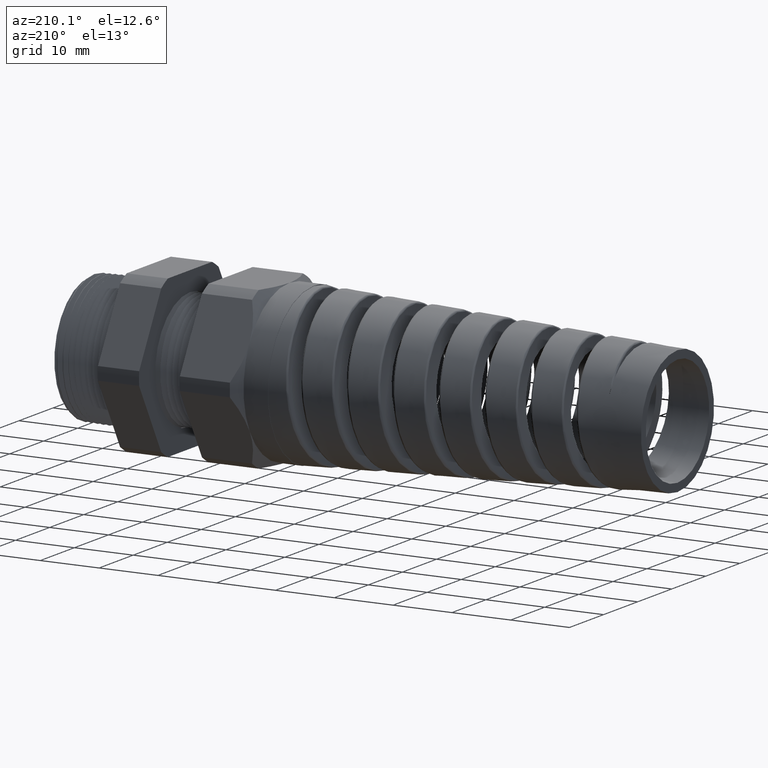
[diagram: clean part render]
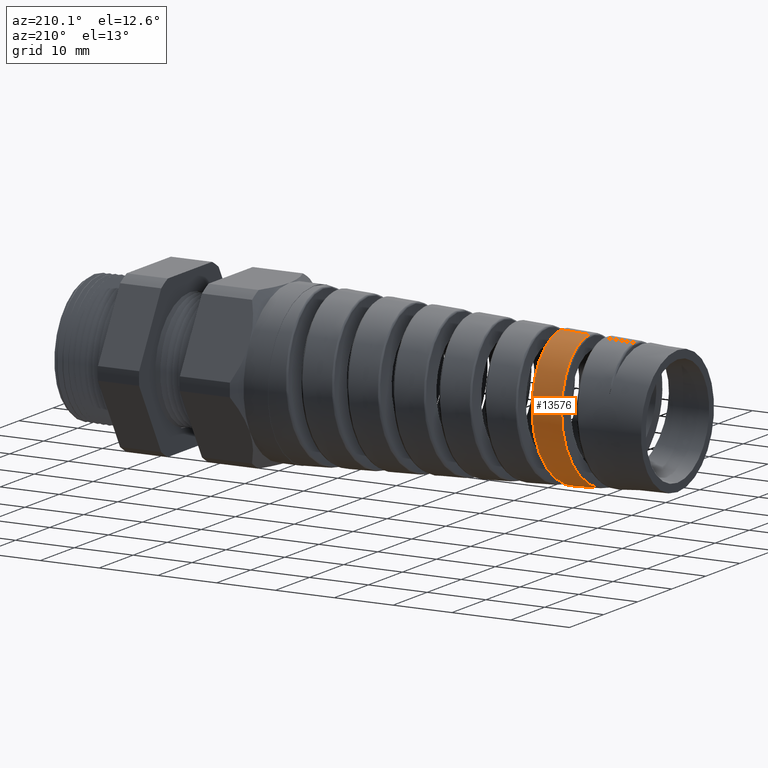
[diagram: same view with one face highlighted and labeled with its STEP entity id]
A machine part, auxiliary view. The second image highlights one B-rep face of the part: STEP entity #13576.
In plain terms, the highlighted conical surface has half-angle 2.5 deg.
Its self-contained STEP definition (entity closure, byte-faithful):
#1349 = VERTEX_POINT ( 'NONE', #6402 ) ;
#2171 = DIRECTION ( 'NONE',  ( 0.9990482215818576900, 5.341834311772761800E-018, 0.04361938736533631200 ) ) ;
#2172 = VECTOR ( 'NONE', #2171, 39.37007874015748100 ) ;
#2173 = CARTESIAN_POINT ( 'NONE',  ( -1.369999999999999900, 6.490628035480970000E-017, 0.5299999999999999200 ) ) ;
#2174 = LINE ( 'NONE', #2173, #2172 ) ;
#3533 = EDGE_CURVE ( 'NONE', #3606, #4310, #6508, .T. ) ;
#3606 = VERTEX_POINT ( 'NONE', #6507 ) ;
#3684 = VERTEX_POINT ( 'NONE', #6532 ) ;
#3785 = ORIENTED_EDGE ( 'NONE', *, *, #3818, .T. ) ;
#3818 = EDGE_CURVE ( 'NONE', #1349, #3684, #6530, .T. ) ;
#4294 = EDGE_CURVE ( 'NONE', #3606, #3684, #6642, .T. ) ;
#4310 = VERTEX_POINT ( 'NONE', #6638 ) ;
#6402 = CARTESIAN_POINT ( 'NONE',  ( -3.067532676807746200, 4.560865582413023300E-015, 0.4558841227125626200 ) ) ;
#6491 = CARTESIAN_POINT ( 'NONE',  ( -3.357566093671179100, 0.3993772627108215200, -0.1943739332452036100 ) ) ;
#6492 = CARTESIAN_POINT ( 'NONE',  ( -3.360673770736163100, 0.3857512358920430800, -0.2199495894635312700 ) ) ;
#6493 = CARTESIAN_POINT ( 'NONE',  ( -3.365409521675556600, 0.3613567431142453200, -0.2564703036897577600 ) ) ;
#6494 = CARTESIAN_POINT ( 'NONE',  ( -3.366988527278604400, 0.3526183664196015900, -0.2682376931387198100 ) ) ;
#6495 = CARTESIAN_POINT ( 'NONE',  ( -3.370121214970320400, 0.3341822537654281500, -0.2906755593345325400 ) ) ;
#6496 = CARTESIAN_POINT ( 'NONE',  ( -3.373241411329460000, 0.3147223894321931600, -0.3121143783896470600 ) ) ;
#6497 = CARTESIAN_POINT ( 'NONE',  ( -3.376366450640192300, 0.2932383972041345300, -0.3315734345683653600 ) ) ;
#6498 = CARTESIAN_POINT ( 'NONE',  ( -3.379509229768377800, 0.2707249602837076800, -0.3500232927063636200 ) ) ;
#6499 = CARTESIAN_POINT ( 'NONE',  ( -3.381098126126260300, 0.2588848629467775400, -0.3587849316024950800 ) ) ;
#6500 = CARTESIAN_POINT ( 'NONE',  ( -3.385826614746244400, 0.2224509035330605200, -0.3830399738092388800 ) ) ;
#6501 = CARTESIAN_POINT ( 'NONE',  ( -3.388939955851066900, 0.1968855632277454500, -0.3966223424872163900 ) ) ;
#6502 = CARTESIAN_POINT ( 'NONE',  ( -3.395209889495009100, 0.1432598365775594200, -0.4186979664837127100 ) ) ;
#6503 = CARTESIAN_POINT ( 'NONE',  ( -3.398395632392450200, 0.1149181669733751200, -0.4272042876221297500 ) ) ;
#6504 = CARTESIAN_POINT ( 'NONE',  ( -3.404676532087281200, 0.05795799126588668100, -0.4383018636081877900 ) ) ;
#6505 = CARTESIAN_POINT ( 'NONE',  ( -3.407794646049892700, 0.02914467440305522300, -0.4410279642995983400 ) ) ;
#6506 = CARTESIAN_POINT ( 'NONE',  ( -3.410951644221473800, -8.311070975852356500E-013, -0.4408901267826116400 ) ) ;
#6507 = CARTESIAN_POINT ( 'NONE',  ( -3.410951644221473800, -8.311070975852356500E-013, -0.4408901267826116400 ) ) ;
#6508 = B_SPLINE_CURVE_WITH_KNOTS ( 'NONE', 3,
 ( #6506, #6505, #6504, #6503, #6502, #6501, #6500, #6499, #6498, #6497, #6496, #6495, #6494, #6493, #6492, #6491, #6564, #6563, #6562, #6561, #6560, #6559, #6558, #6557, #6556, #6555, #6554, #6553, #6552, #6551, #6550, #6549, #6548, #6547, #6546, #6545, #6544, #6543, #6542, #6541, #6540, #6539, #6538, #6537, #6536, #6535, #6534, #6533 ),
 .UNSPECIFIED., .F., .F.,
 ( 4, 2, 2, 2, 2, 1, 2, 2, 2, 2, 2, 2, 2, 2, 2, 2, 1, 2, 2, 2, 2, 2, 2, 2, 4 ),
 ( 0.04772691341789807300, 0.04997315946578263100, 0.05221940551366719600, 0.05446565156155175300, 0.05558877458549402900, 0.05671189760943630400, 0.05783502063337858700, 0.05895814365732086200, 0.06120438970520541300, 0.06232751272914768800, 0.06345063575308995700, 0.06569688180097452100, 0.06682000482491679000, 0.06794312784885905800, 0.07018937389674362300, 0.07131249692068589200, 0.07243561994462816000, 0.07355874296857042900, 0.07468186599251269700, 0.07692811204039726200, 0.07805123506433953000, 0.07917435808828181300, 0.08142060413616636300, 0.08254372716010863200, 0.08366685018405091400 ),
 .UNSPECIFIED. ) ;
#6525 = CARTESIAN_POINT ( 'NONE',  ( -3.079968950017749400, 0.1175132309243165600, 0.4409308778012224200 ) ) ;
#6526 = CARTESIAN_POINT ( 'NONE',  ( -3.073702401714430500, 0.05890385020719510200, 0.4527791685881433800 ) ) ;
#6527 = CARTESIAN_POINT ( 'NONE',  ( -3.070621002902614200, 0.02949765279870105900, 0.4557492834832513900 ) ) ;
#6528 = CARTESIAN_POINT ( 'NONE',  ( -3.067532676807746200, 4.560865582413023300E-015, 0.4558841227125626200 ) ) ;
#6530 = B_SPLINE_CURVE_WITH_KNOTS ( 'NONE', 3,
 ( #6528, #6527, #6526, #6525, #6610, #6609, #6608, #6607, #6606, #6605, #6604, #6603, #6602, #6601, #6600, #6599, #6598, #6597, #6596, #6595, #6594, #6593, #6592, #6591, #6590, #6589, #6588, #6587, #6586, #6585, #6584, #6583, #6582, #6581, #6580, #6579, #6578, #6577, #6576, #6575, #6574, #6573, #6572, #6571, #6570, #6569 ),
 .UNSPECIFIED., .F., .F.,
 ( 4, 2, 2, 2, 2, 2, 2, 2, 2, 2, 2, 2, 2, 2, 2, 2, 2, 2, 2, 2, 2, 2, 4 ),
 ( 0.4325509372496640900, 0.4348220332103909800, 0.4370931291711178700, 0.4382286771514813400, 0.4393642251318447500, 0.4416353210925717000, 0.4439064170532985900, 0.4461775130140254700, 0.4473130609943889400, 0.4484486089747523600, 0.4507197049354793000, 0.4529908008962061900, 0.4541263488765696100, 0.4552618968569330800, 0.4575329928176599700, 0.4586685407980234400, 0.4598040887783868500, 0.4620751847391138000, 0.4632107327194772100, 0.4643462806998406900, 0.4654818286802041000, 0.4666173766605675700, 0.4688884726212944600 ),
 .UNSPECIFIED. ) ;
#6532 = CARTESIAN_POINT ( 'NONE',  ( -3.217488963632075800, 7.240726207733943600E-014, -0.4493368898347531200 ) ) ;
#6533 = CARTESIAN_POINT ( 'NONE',  ( -3.260907839818875800, 1.011839699209273400E-012, 0.4474411807604094500 ) ) ;
#6534 = CARTESIAN_POINT ( 'NONE',  ( -3.262453365767665300, 0.01447801605065983400, 0.4473737016401629900 ) ) ;
#6535 = CARTESIAN_POINT ( 'NONE',  ( -3.264002003115718900, 0.02898014949747086700, 0.4466050865433570700 ) ) ;
#6536 = CARTESIAN_POINT ( 'NONE',  ( -3.267120608001209600, 0.05803231697633271700, 0.4436286844014529800 ) ) ;
#6537 = CARTESIAN_POINT ( 'NONE',  ( -3.268690792910643700, 0.07258291865864412200, 0.4414101734979850000 ) ) ;
#6538 = CARTESIAN_POINT ( 'NONE',  ( -3.273352759831671000, 0.1153501640519790000, 0.4327335795460622300 ) ) ;
#6539 = CARTESIAN_POINT ( 'NONE',  ( -3.276431159845525800, 0.1430149807874275000, 0.4242500468520057900 ) ) ;
#6540 = CARTESIAN_POINT ( 'NONE',  ( -3.281090950111293900, 0.1832378243595823600, 0.4074931444914027800 ) ) ;
#6541 = CARTESIAN_POINT ( 'NONE',  ( -3.282658003288313700, 0.1964881735009068300, 0.4011997736496292200 ) ) ;
#6542 = CARTESIAN_POINT ( 'NONE',  ( -3.285789135545138500, 0.2222734623345861100, 0.3873516609404389900 ) ) ;
#6543 = CARTESIAN_POINT ( 'NONE',  ( -3.287343389728596900, 0.2347305670561012400, 0.3798467217236512500 ) ) ;
#6544 = CARTESIAN_POINT ( 'NONE',  ( -3.291995300696520100, 0.2708313794969625700, 0.3556413880818490900 ) ) ;
#6545 = CARTESIAN_POINT ( 'NONE',  ( -3.295082064526766400, 0.2932164092554547800, 0.3372661847653422600 ) ) ;
#6546 = CARTESIAN_POINT ( 'NONE',  ( -3.299777444720037900, 0.3241971254329317800, 0.3062637085198347500 ) ) ;
#6547 = CARTESIAN_POINT ( 'NONE',  ( -3.301351709071673700, 0.3340680523602086400, 0.2953582151244671400 ) ) ;
#6548 = CARTESIAN_POINT ( 'NONE',  ( -3.304468337431298000, 0.3525041671316791500, 0.2728689777716635200 ) ) ;
#6549 = CARTESIAN_POINT ( 'NONE',  ( -3.307570402480658300, 0.3697520198798326400, 0.2495894714864067800 ) ) ;
#6550 = CARTESIAN_POINT ( 'NONE',  ( -3.310673254763081700, 0.3846560294428794700, 0.2247549784443887100 ) ) ;
#6551 = CARTESIAN_POINT ( 'NONE',  ( -3.313791120770412900, 0.3983712237471512300, 0.1991336739305391300 ) ) ;
#6552 = CARTESIAN_POINT ( 'NONE',  ( -3.315365414752677900, 0.4046618572710131700, 0.1858605589649403900 ) ) ;
#6553 = CARTESIAN_POINT ( 'NONE',  ( -3.320073804740470100, 0.4214635324617431200, 0.1453355542494953500 ) ) ;
#6554 = CARTESIAN_POINT ( 'NONE',  ( -3.323169059545372200, 0.4298661366710492300, 0.1176118886332553600 ) ) ;
#6555 = CARTESIAN_POINT ( 'NONE',  ( -3.327836812933715000, 0.4383848557126056000, 0.07500419880616479600 ) ) ;
#6556 = CARTESIAN_POINT ( 'NONE',  ( -3.329396799306510300, 0.4405387410883915300, 0.06063005167508309100 ) ) ;
#6557 = CARTESIAN_POINT ( 'NONE',  ( -3.332540012452450000, 0.4434346262808191400, 0.03153010627738183500 ) ) ;
#6558 = CARTESIAN_POINT ( 'NONE',  ( -3.334117350797715300, 0.4441625870291199300, 0.01685755765400712800 ) ) ;
#6559 = CARTESIAN_POINT ( 'NONE',  ( -3.338804640515949700, 0.4441862521318450900, -0.02673617092676361400 ) ) ;
#6560 = CARTESIAN_POINT ( 'NONE',  ( -3.341901964249711200, 0.4413763604114292500, -0.05553480623824288300 ) ) ;
#6561 = CARTESIAN_POINT ( 'NONE',  ( -3.346596718267897100, 0.4329122253099353400, -0.09832618477301440000 ) ) ;
#6562 = CARTESIAN_POINT ( 'NONE',  ( -3.348178561471867100, 0.4293519635484766600, -0.1125994045492525300 ) ) ;
#6563 = CARTESIAN_POINT ( 'NONE',  ( -3.351324562399918600, 0.4208828377307353200, -0.1405614397524046500 ) ) ;
#6564 = CARTESIAN_POINT ( 'NONE',  ( -3.352887022782134400, 0.4159883870108767600, -0.1542377639022205500 ) ) ;
#6569 = CARTESIAN_POINT ( 'NONE',  ( -3.217488963632075800, 7.240726207733943600E-014, -0.4493368898347531200 ) ) ;
#6570 = CARTESIAN_POINT ( 'NONE',  ( -3.214352004735597100, 0.02952915062313365600, -0.4494738524180338400 ) ) ;
#6571 = CARTESIAN_POINT ( 'NONE',  ( -3.211233159174713000, 0.05891567386074780800, -0.4467272464958085800 ) ) ;
#6572 = CARTESIAN_POINT ( 'NONE',  ( -3.206491778514240400, 0.1027664431826475500, -0.4381737145223275600 ) ) ;
#6573 = CARTESIAN_POINT ( 'NONE',  ( -3.204903982724939000, 0.1173115928780318900, -0.4345746854346387300 ) ) ;
#6574 = CARTESIAN_POINT ( 'NONE',  ( -3.201761296768864500, 0.1456845243574405900, -0.4260477266903308100 ) ) ;
#6575 = CARTESIAN_POINT ( 'NONE',  ( -3.200197741923271400, 0.1595929988774683100, -0.4211057943269370700 ) ) ;
#6576 = CARTESIAN_POINT ( 'NONE',  ( -3.197071033641258400, 0.1868605934233847900, -0.4098854000475902200 ) ) ;
#6577 = CARTESIAN_POINT ( 'NONE',  ( -3.195507919279370900, 0.2002197166216435900, -0.4036069348988354800 ) ) ;
#6578 = CARTESIAN_POINT ( 'NONE',  ( -3.192367709295332200, 0.2263794341362584700, -0.3896951870724747500 ) ) ;
#6579 = CARTESIAN_POINT ( 'NONE',  ( -3.190781774743062900, 0.2392475250872788400, -0.3820147513104109000 ) ) ;
#6580 = CARTESIAN_POINT ( 'NONE',  ( -3.186049550928843100, 0.2764196012708413600, -0.3572370000773457700 ) ) ;
#6581 = CARTESIAN_POINT ( 'NONE',  ( -3.182939721915199800, 0.2992350834743966500, -0.3385142232785450800 ) ) ;
#6582 = CARTESIAN_POINT ( 'NONE',  ( -3.178251141466536200, 0.3305790284535852200, -0.3072159690703036300 ) ) ;
#6583 = CARTESIAN_POINT ( 'NONE',  ( -3.176684570090773100, 0.3405437196582910600, -0.2962436825840330000 ) ) ;
#6584 = CARTESIAN_POINT ( 'NONE',  ( -3.173528581424177400, 0.3594758458731314700, -0.2731882172001736700 ) ) ;
#6585 = CARTESIAN_POINT ( 'NONE',  ( -3.171950133426214800, 0.3683714567338839400, -0.2611816949289128000 ) ) ;
#6586 = CARTESIAN_POINT ( 'NONE',  ( -3.167255710658075400, 0.3930204077754027000, -0.2242553177426783700 ) ) ;
#6587 = CARTESIAN_POINT ( 'NONE',  ( -3.164153838507612000, 0.4069156391926667100, -0.1982449725559954100 ) ) ;
#6588 = CARTESIAN_POINT ( 'NONE',  ( -3.159453326310834000, 0.4239278828422929900, -0.1571377147541867200 ) ) ;
#6589 = CARTESIAN_POINT ( 'NONE',  ( -3.157870031213200000, 0.4289763059932620300, -0.1430041040931829800 ) ) ;
#6590 = CARTESIAN_POINT ( 'NONE',  ( -3.154729245335346800, 0.4375809920560109800, -0.1145324750043766500 ) ) ;
#6591 = CARTESIAN_POINT ( 'NONE',  ( -3.153169429080755500, 0.4411545985272788400, -0.1001771147102086500 ) ) ;
#6592 = CARTESIAN_POINT ( 'NONE',  ( -3.148498524212525900, 0.4497421648678179300, -0.05676349230506420200 ) ) ;
#6593 = CARTESIAN_POINT ( 'NONE',  ( -3.145396119728105100, 0.4526433736032899300, -0.02736100488197026900 ) ) ;
#6594 = CARTESIAN_POINT ( 'NONE',  ( -3.139095155993695500, 0.4525868502551351800, 0.03238563492864426900 ) ) ;
#6595 = CARTESIAN_POINT ( 'NONE',  ( -3.135985065034018400, 0.4496151968873995400, 0.06188825831299311900 ) ) ;
#6596 = CARTESIAN_POINT ( 'NONE',  ( -3.131324399594174900, 0.4409475934206085700, 0.1052676398942483800 ) ) ;
#6597 = CARTESIAN_POINT ( 'NONE',  ( -3.129769748660220500, 0.4373515487410578600, 0.1195995601244720000 ) ) ;
#6598 = CARTESIAN_POINT ( 'NONE',  ( -3.126643305078324000, 0.4287188137881096100, 0.1480011722567481900 ) ) ;
#6599 = CARTESIAN_POINT ( 'NONE',  ( -3.125063923642630700, 0.4236496205629588500, 0.1621362010999689600 ) ) ;
#6600 = CARTESIAN_POINT ( 'NONE',  ( -3.120371887994703600, 0.4065518398641899100, 0.2032997543007545900 ) ) ;
#6601 = CARTESIAN_POINT ( 'NONE',  ( -3.117283387261012200, 0.3926189512618187800, 0.2293002484133863100 ) ) ;
#6602 = CARTESIAN_POINT ( 'NONE',  ( -3.111065973872628300, 0.3597746221169508300, 0.2784544260443950800 ) ) ;
#6603 = CARTESIAN_POINT ( 'NONE',  ( -3.107910284093979800, 0.3406439184364076200, 0.3017645262430220800 ) ) ;
#6604 = CARTESIAN_POINT ( 'NONE',  ( -3.101697291077390800, 0.2988343340812226700, 0.3435761885233839000 ) ) ;
#6605 = CARTESIAN_POINT ( 'NONE',  ( -3.098614506235686700, 0.2760541539397912100, 0.3623137846823281700 ) ) ;
#6606 = CARTESIAN_POINT ( 'NONE',  ( -3.093936749441118700, 0.2390406224783948600, 0.3871184750904603800 ) ) ;
#6607 = CARTESIAN_POINT ( 'NONE',  ( -3.092362219847138300, 0.2261694779419866100, 0.3948555591505061900 ) ) ;
#6608 = CARTESIAN_POINT ( 'NONE',  ( -3.089245720587803200, 0.1999968375954149500, 0.4088870228491402500 ) ) ;
#6609 = CARTESIAN_POINT ( 'NONE',  ( -3.087697002810492200, 0.1866438416945575800, 0.4152227527707196800 ) ) ;
#6610 = CARTESIAN_POINT ( 'NONE',  ( -3.083056840655224600, 0.1458035740957977500, 0.4322313872904519100 ) ) ;
#6638 = CARTESIAN_POINT ( 'NONE',  ( -3.260907839818875800, 1.011839699209273400E-012, 0.4474411807604094500 ) ) ;
#6639 = DIRECTION ( 'NONE',  ( 0.9990482215818576900, 0.0000000000000000000, -0.04361938736533631200 ) ) ;
#6640 = VECTOR ( 'NONE', #6639, 39.37007874015748100 ) ;
#6641 = CARTESIAN_POINT ( 'NONE',  ( -1.369999999999999900, 0.0000000000000000000, -0.5299999999999999200 ) ) ;
#6642 = LINE ( 'NONE', #6641, #6640 ) ;
#12170 = DIRECTION ( 'NONE',  ( 0.0000000000000000000, 0.0000000000000000000, -1.000000000000000000 ) ) ;
#12171 = DIRECTION ( 'NONE',  ( 1.000000000000000000, 0.0000000000000000000, 0.0000000000000000000 ) ) ;
#12172 = CARTESIAN_POINT ( 'NONE',  ( -1.369999999999999900, 0.0000000000000000000, 0.0000000000000000000 ) ) ;
#12173 = AXIS2_PLACEMENT_3D ( 'NONE', #12172, #12171, #12170 ) ;
#12174 = CONICAL_SURFACE ( 'NONE', #12173, 0.5299999999999999200, 0.04363323129985854900 ) ;
#12176 = FACE_OUTER_BOUND ( 'NONE', #13565, .T. ) ;
#13564 = ORIENTED_EDGE ( 'NONE', *, *, #3533, .T. ) ;
#13565 = EDGE_LOOP ( 'NONE', ( #13564, #13692, #3785, #13578 ) ) ;
#13576 = ADVANCED_FACE ( 'NONE', ( #12176 ), #12174, .T. ) ;
#13578 = ORIENTED_EDGE ( 'NONE', *, *, #4294, .F. ) ;
#13692 = ORIENTED_EDGE ( 'NONE', *, *, #14053, .T. ) ;
#14053 = EDGE_CURVE ( 'NONE', #4310, #1349, #2174, .T. ) ;